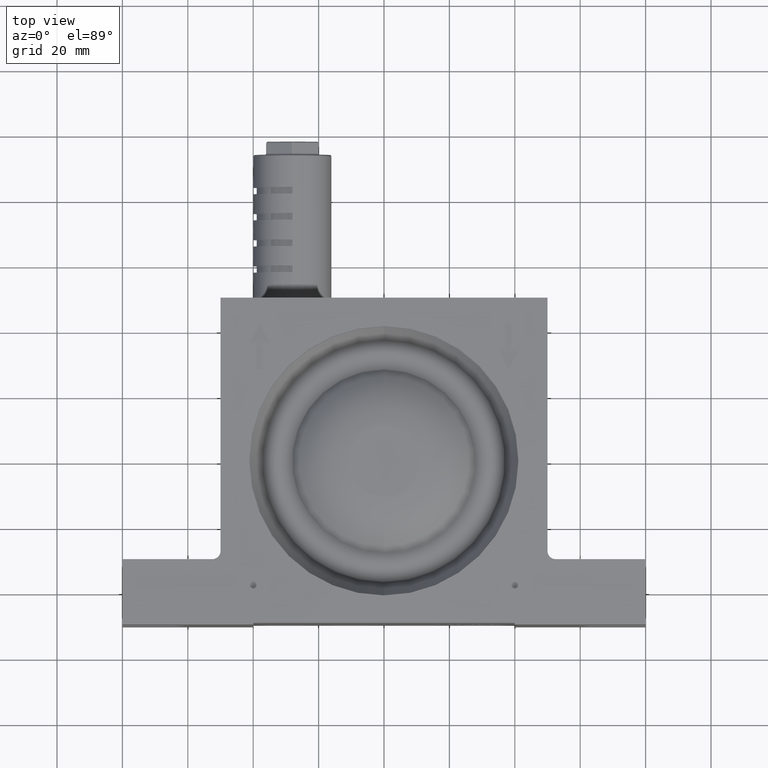
[diagram: clean part render]
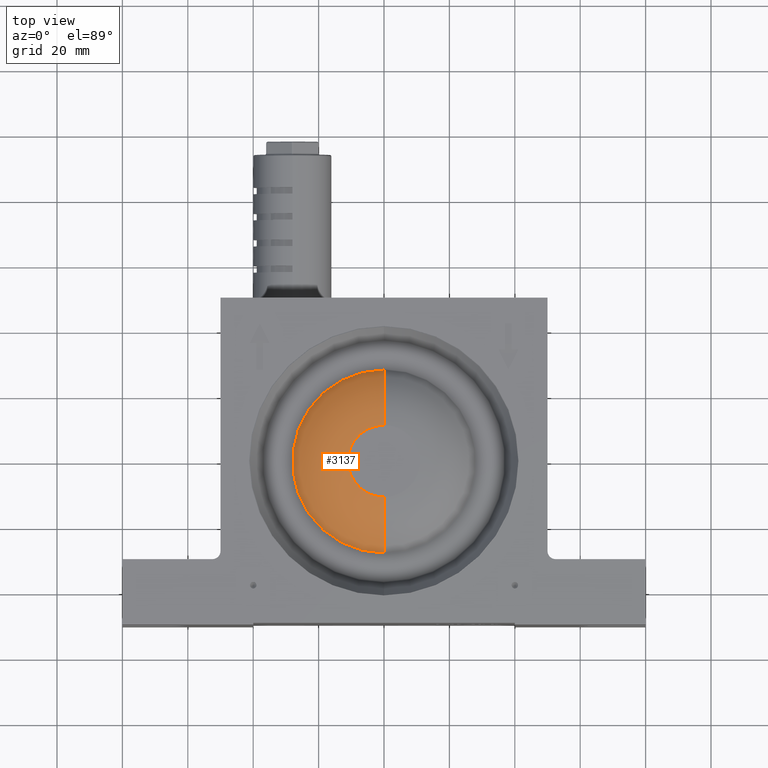
[diagram: same view with one face highlighted and labeled with its STEP entity id]
A machine part, top view. The second image highlights one B-rep face of the part: STEP entity #3137.
In plain terms, the highlighted toroidal blend (fillet) surface has major radius 11 mm and minor (blend) radius 23.3 mm.
Its self-contained STEP definition (entity closure, byte-faithful):
#322 = DIRECTION ( 'NONE',  ( 1.665334536937734800E-016, 1.000000000000000000, 0.0000000000000000000 ) ) ;
#399 = EDGE_LOOP ( 'NONE', ( #3653, #4102, #749, #2306 ) ) ;
#697 = CIRCLE ( 'NONE', #1591, 27.97781441459554900 ) ;
#749 = ORIENTED_EDGE ( 'NONE', *, *, #7043, .F. ) ;
#890 = AXIS2_PLACEMENT_3D ( 'NONE', #1456, #5777, #322 ) ;
#910 = DIRECTION ( 'NONE',  ( -1.665334536937735100E-016, -1.000000000000000000, 1.240070757687084700E-016 ) ) ;
#1336 = VERTEX_POINT ( 'NONE', #4279 ) ;
#1378 = DIRECTION ( 'NONE',  ( 8.602726321297810600E-018, 1.224606353822375800E-016, 1.000000000000000000 ) ) ;
#1456 = CARTESIAN_POINT ( 'NONE',  ( 8.914493716880369400E-016, -1.697985285362134900E-015, 25.25000000000000000 ) ) ;
#1591 = AXIS2_PLACEMENT_3D ( 'NONE', #3582, #1378, #910 ) ;
#1832 = DIRECTION ( 'NONE',  ( 8.602726321297810600E-018, 1.224606353822375800E-016, 1.000000000000000000 ) ) ;
#1907 = VERTEX_POINT ( 'NONE', #2965 ) ;
#2009 = AXIS2_PLACEMENT_3D ( 'NONE', #3966, #1832, #6151 ) ;
#2185 = EDGE_CURVE ( 'NONE', #1907, #6444, #697, .T. ) ;
#2276 = EDGE_CURVE ( 'NONE', #6444, #1336, #5410, .T. ) ;
#2306 = ORIENTED_EDGE ( 'NONE', *, *, #3942, .F. ) ;
#2763 = DIRECTION ( 'NONE',  ( 1.000000000000000000, -1.665334536937734800E-016, -8.602726321297790500E-018 ) ) ;
#2870 = VERTEX_POINT ( 'NONE', #6914 ) ;
#2965 = CARTESIAN_POINT ( 'NONE',  ( 5.487526457128576400E-015, 27.97781441459553500, 17.90756302521009100 ) ) ;
#3137 = ADVANCED_FACE ( 'NONE', ( #5497 ), #4668, .T. ) ;
#3399 = DIRECTION ( 'NONE',  ( 1.665334536937734800E-016, 1.000000000000000000, 0.0000000000000000000 ) ) ;
#3582 = CARTESIAN_POINT ( 'NONE',  ( 8.282843958625419100E-016, -3.249997120711089600E-015, 17.90756302521009900 ) ) ;
#3653 = ORIENTED_EDGE ( 'NONE', *, *, #2185, .T. ) ;
#3942 = EDGE_CURVE ( 'NONE', #1907, #2870, #3958, .T. ) ;
#3958 = CIRCLE ( 'NONE', #4410, 23.30000000000000100 ) ;
#3966 = CARTESIAN_POINT ( 'NONE',  ( 6.910058484017980000E-016, -5.204170427930419700E-015, 1.950000000000000000 ) ) ;
#4102 = ORIENTED_EDGE ( 'NONE', *, *, #2276, .T. ) ;
#4279 = CARTESIAN_POINT ( 'NONE',  ( -4.772390925203179900E-015, -11.00000000000000200, 25.25000000000000000 ) ) ;
#4410 = AXIS2_PLACEMENT_3D ( 'NONE', #4446, #2763, #3399 ) ;
#4446 = CARTESIAN_POINT ( 'NONE',  ( 2.522873839033306200E-015, 10.99999999999999500, 1.949999999999998600 ) ) ;
#4668 = TOROIDAL_SURFACE ( 'NONE', #2009, 11.00000000000000000, 23.30000000000000100 ) ;
#4835 = DIRECTION ( 'NONE',  ( -2.889981336085088800E-016, -1.000000000000000000, 0.0000000000000000000 ) ) ;
#5226 = AXIS2_PLACEMENT_3D ( 'NONE', #7023, #6428, #4835 ) ;
#5410 = CIRCLE ( 'NONE', #5226, 23.30000000000000100 ) ;
#5497 = FACE_OUTER_BOUND ( 'NONE', #399, .T. ) ;
#5609 = CARTESIAN_POINT ( 'NONE',  ( -7.257251752400804900E-015, -27.97781441459554200, 17.90756302521010200 ) ) ;
#5777 = DIRECTION ( 'NONE',  ( 8.602726321297810600E-018, 1.224606353822375800E-016, 1.000000000000000000 ) ) ;
#6151 = DIRECTION ( 'NONE',  ( 1.665334536937734800E-016, 1.000000000000000000, -1.224606353822375800E-016 ) ) ;
#6428 = DIRECTION ( 'NONE',  ( -1.000000000000000000, 2.889981336085088300E-016, 8.602726321297775100E-018 ) ) ;
#6444 = VERTEX_POINT ( 'NONE', #5609 ) ;
#6733 = CIRCLE ( 'NONE', #890, 11.00000000000000000 ) ;
#6914 = CARTESIAN_POINT ( 'NONE',  ( 2.723317362319545200E-015, 10.99999999999999800, 25.25000000000000000 ) ) ;
#7023 = CARTESIAN_POINT ( 'NONE',  ( -2.487973621291799400E-015, -11.00000000000000500, 1.950000000000001300 ) ) ;
#7043 = EDGE_CURVE ( 'NONE', #2870, #1336, #6733, .T. ) ;